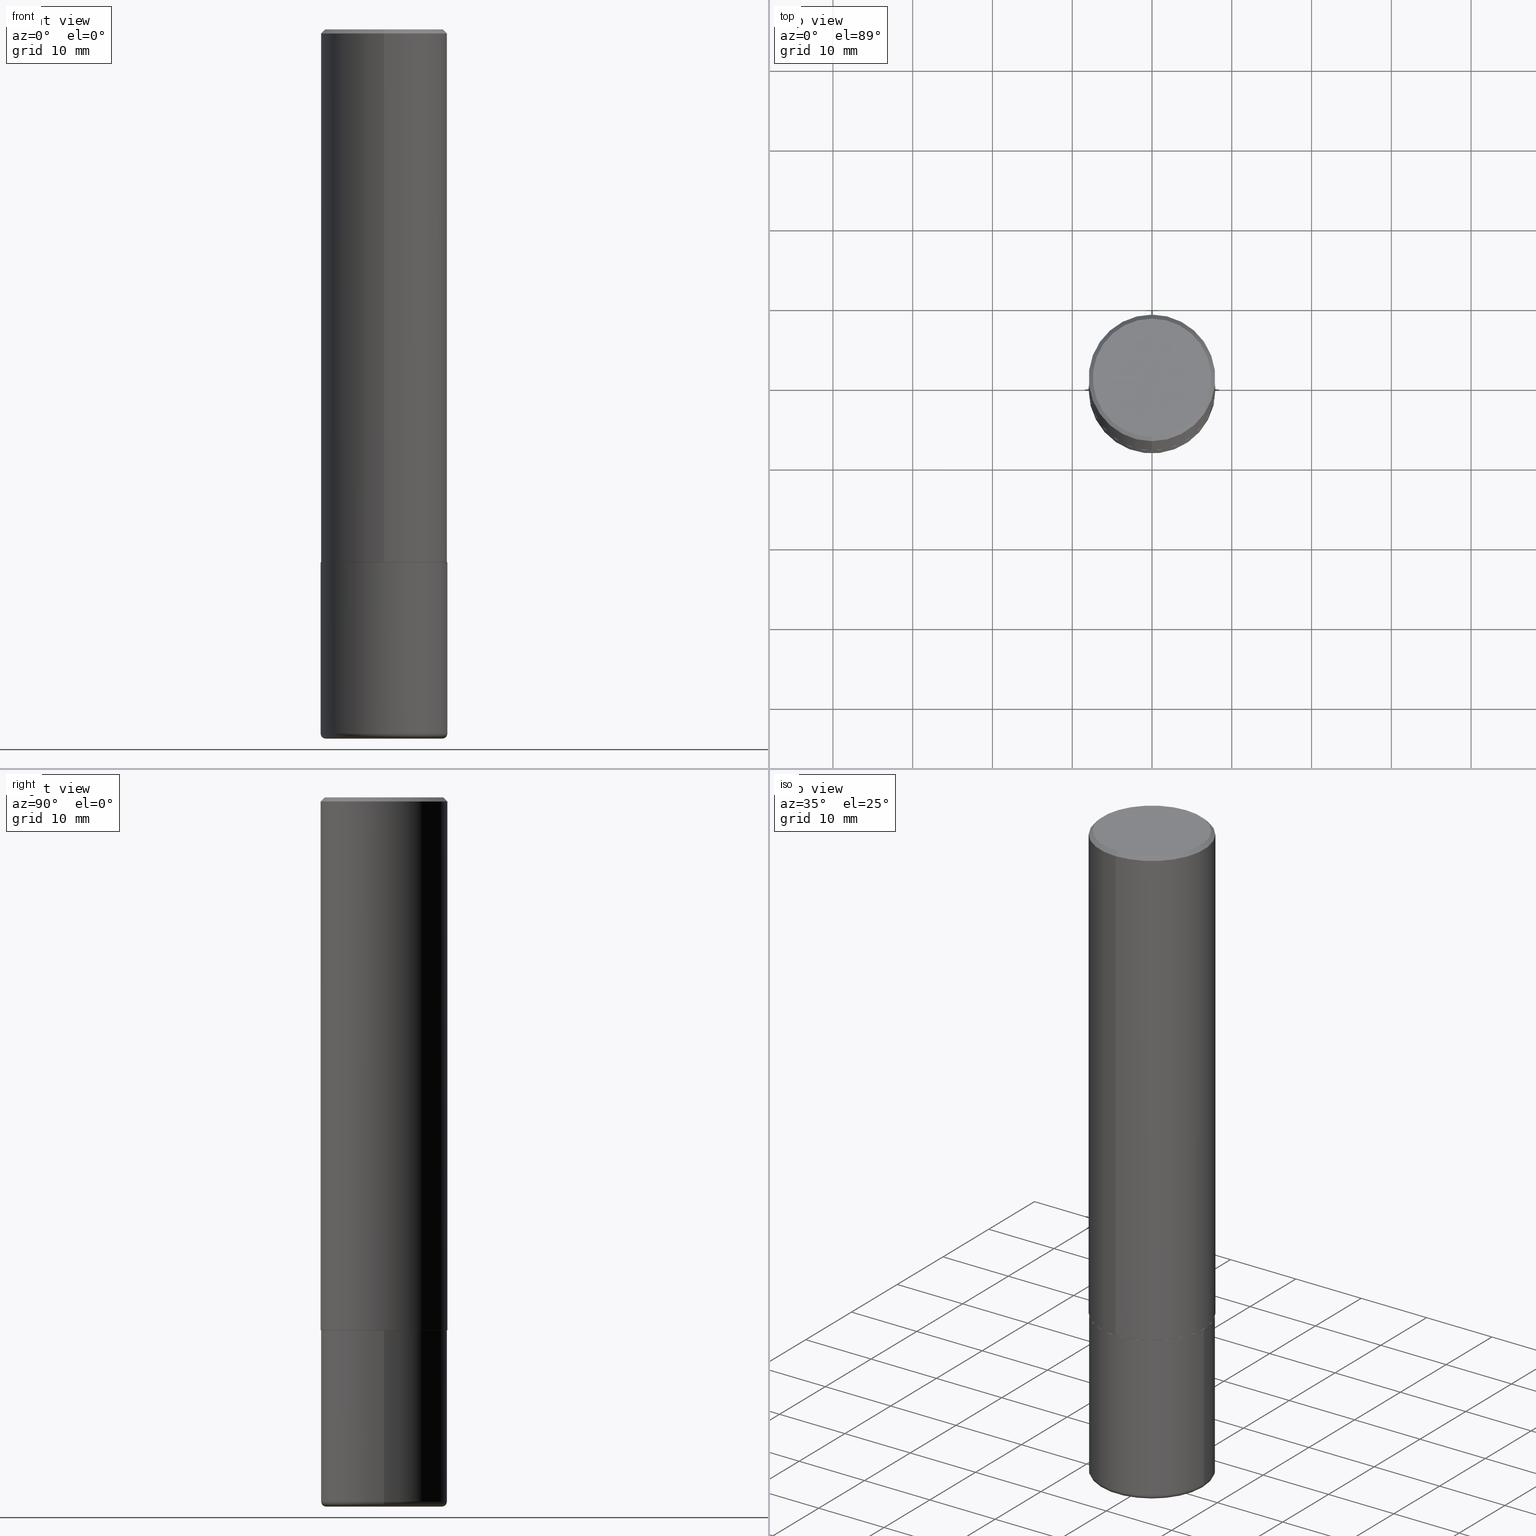
[diagram: canonical four-view strip — front | top / right | iso, engineering-drawing reading convention]
A machine part, canonical four-view strip (front | top / right | iso — engineering-drawing reading convention). The complete STEP part file that produces these views, byte-faithful:
ISO-10303-21;
HEADER;
FILE_DESCRIPTION (( 'STEP AP203' ),
    '1' );
FILE_NAME ('91239.STEP',
    '2024-03-06T17:14:36',
    ( '' ),
    ( '' ),
    'SwSTEP 2.0',
    'SolidWorks 2023',
    '' );
FILE_SCHEMA (( 'CONFIG_CONTROL_DESIGN' ));
ENDSEC;

DATA;
#1 = DIRECTION ( 'NONE',  ( 1.000000000000000000, -6.982962677686265922E-15, 0.000000000000000000 ) ) ;
#2 = EDGE_LOOP ( 'NONE', ( #74, #34, #297, #275 ) ) ;
#3 = CARTESIAN_POINT ( 'NONE',  ( -2.143905624303602824E-15, -0.3125000000000000555, -0.01999999999999897693 ) ) ;
#4 = ORIENTED_EDGE ( 'NONE', *, *, #373, .F. ) ;
#5 = DIRECTION ( 'NONE',  ( -1.000000000000000000, 6.982962677686265922E-15, -4.876176775795935793E-29 ) ) ;
#6 = FACE_OUTER_BOUND ( 'NONE', #67, .T. ) ;
#7 = AXIS2_PLACEMENT_3D ( 'NONE', #319, #381, #26 ) ;
#8 = AXIS2_PLACEMENT_3D ( 'NONE', #265, #163, #38 ) ;
#9 = FACE_OUTER_BOUND ( 'NONE', #12, .T. ) ;
#10 = COORDINATED_UNIVERSAL_TIME_OFFSET ( 5, 0, .BEHIND. ) ;
#11 = DIRECTION ( 'NONE',  ( -2.445724373662476739E-29, 3.491115351669597153E-15, 1.000000000000000000 ) ) ;
#12 = EDGE_LOOP ( 'NONE', ( #141, #329, #174, #242 ) ) ;
#13 = VECTOR ( 'NONE', #416, 39.37007874015748143 ) ;
#14 = DIRECTION ( 'NONE',  ( -2.445724373662476739E-29, 3.491115351669597153E-15, 1.000000000000000000 ) ) ;
#15 = VERTEX_POINT ( 'NONE', #120 ) ;
#16 = PERSON_AND_ORGANIZATION_ROLE ( 'design_owner' ) ;
#17 = VERTEX_POINT ( 'NONE', #403 ) ;
#18 = CALENDAR_DATE ( 2024, 6, 3 ) ;
#19 = ORIENTED_EDGE ( 'NONE', *, *, #350, .F. ) ;
#20 = CLOSED_SHELL ( 'NONE', ( #189, #91, #334, #103, #302, #251, #346, #148 ) ) ;
#21 = DIRECTION ( 'NONE',  ( -2.445724373662476739E-29, 3.491115351669597153E-15, 1.000000000000000000 ) ) ;
#22 = APPLICATION_CONTEXT ( 'configuration controlled 3d designs of mechanical parts and assemblies' ) ;
#23 = EDGE_CURVE ( 'NONE', #399, #17, #380, .T. ) ;
#24 = DIRECTION ( 'NONE',  ( 1.000000000000000000, -6.982962677686264344E-15, 0.000000000000000000 ) ) ;
#25 = APPROVAL_ROLE ( '' ) ;
#26 = DIRECTION ( 'NONE',  ( 1.000000000000000000, -6.982962677686265922E-15, 0.000000000000000000 ) ) ;
#27 = AXIS2_PLACEMENT_3D ( 'NONE', #137, #134, #199 ) ;
#28 = CARTESIAN_POINT ( 'NONE',  ( -0.2875000000000000333, -1.009008728716964076E-14, -3.475000000000000089 ) ) ;
#29 = DIRECTION ( 'NONE',  ( 1.000000000000000000, -6.982962677686266711E-15, 4.876176775795936353E-29 ) ) ;
#30 = FACE_OUTER_BOUND ( 'NONE', #310, .T. ) ;
#31 = AXIS2_PLACEMENT_3D ( 'NONE', #28, #359, #418 ) ;
#32 = AXIS2_PLACEMENT_3D ( 'NONE', #374, #47, #113 ) ;
#33 = PLANE ( 'NONE',  #27 ) ;
#34 = ORIENTED_EDGE ( 'NONE', *, *, #132, .T. ) ;
#35 = APPROVAL ( #382, 'UNSPECIFIED' ) ;
#36 = CARTESIAN_POINT ( 'NONE',  ( 4.891448747324970047E-31, -6.982230703339217380E-17, -0.02000000000000006981 ) ) ;
#37 = DESIGN_CONTEXT ( 'detailed design', #22, 'design' ) ;
#38 = DIRECTION ( 'NONE',  ( 1.000000000000000000, -6.982962677686269077E-15, 0.000000000000000000 ) ) ;
#39 = APPROVAL_PERSON_ORGANIZATION ( #111, #107, #41 ) ;
#40 = EDGE_CURVE ( 'NONE', #49, #399, #109, .T. ) ;
#41 = APPROVAL_ROLE ( '' ) ;
#42 = EDGE_LOOP ( 'NONE', ( #314, #367, #216, #271 ) ) ;
#43 = CARTESIAN_POINT ( 'NONE',  ( -2.143905624303602824E-15, -0.3125000000000000555, -0.01999999999999897693 ) ) ;
#44 = EDGE_LOOP ( 'NONE', ( #237, #247, #85, #349 ) ) ;
#45 = APPROVAL_DATE_TIME ( #343, #276 ) ;
#46 = ORIENTED_EDGE ( 'NONE', *, *, #23, .F. ) ;
#47 = DIRECTION ( 'NONE',  ( 0.000000000000000000, 0.000000000000000000, 1.000000000000000000 ) ) ;
#48 = ORIENTED_EDGE ( 'NONE', *, *, #52, .F. ) ;
#49 = VERTEX_POINT ( 'NONE', #77 ) ;
#50 = CARTESIAN_POINT ( 'NONE',  ( 8.498004101493349225E-29, -1.213289765247992785E-14, -3.474999999999999201 ) ) ;
#51 = VECTOR ( 'NONE', #79, 39.37007874015748143 ) ;
#52 = EDGE_CURVE ( 'NONE', #179, #293, #206, .T. ) ;
#53 = CIRCLE ( 'NONE', #8, 0.3125000000000000000 ) ;
#54 = DIRECTION ( 'NONE',  ( 2.445724373662476458E-29, -3.491115351669597153E-15, -1.000000000000000000 ) ) ;
#55 = PERSON_AND_ORGANIZATION ( #317, #274 ) ;
#56 = DIRECTION ( 'NONE',  ( 6.982962677686265133E-15, 1.000000000000000000, -3.496765431890256920E-15 ) ) ;
#57 = CALENDAR_DATE ( 2024, 6, 3 ) ;
#58 = CARTESIAN_POINT ( 'NONE',  ( 0.2875000000000000333, -1.414049942231473111E-14, -3.475000000000000089 ) ) ;
#59 = EDGE_CURVE ( 'NONE', #15, #181, #286, .T. ) ;
#60 = CIRCLE ( 'NONE', #31, 0.02499999999999959546 ) ;
#61 = APPROVAL_DATE_TIME ( #89, #35 ) ;
#62 = CIRCLE ( 'NONE', #364, 0.3125000000000002776 ) ;
#63 = LINE ( 'NONE', #92, #360 ) ;
#64 = DIRECTION ( 'NONE',  ( -6.982962677686265133E-15, -1.000000000000000000, 3.491115351669596759E-15 ) ) ;
#65 = UNCERTAINTY_MEASURE_WITH_UNIT (LENGTH_MEASURE( 1.000000000000000082E-05 ), #76, 'distance_accuracy_value', 'NONE');
#66 = CARTESIAN_POINT ( 'NONE',  ( 0.000000000000000000, 0.000000000000000000, 0.000000000000000000 ) ) ;
#67 = EDGE_LOOP ( 'NONE', ( #106, #264 ) ) ;
#68 = FACE_OUTER_BOUND ( 'NONE', #160, .T. ) ;
#69 = CIRCLE ( 'NONE', #308, 0.3114999999999999991 ) ;
#70 = AXIS2_PLACEMENT_3D ( 'NONE', #153, #333, #326 ) ;
#71 = CARTESIAN_POINT ( 'NONE',  ( 6.432255102732315053E-29, -9.181633374891039621E-15, -2.629999999999999893 ) ) ;
#72 = DIRECTION ( 'NONE',  ( -2.445724373662476739E-29, 3.491115351669597153E-15, 1.000000000000000000 ) ) ;
#73 = ADVANCED_FACE ( 'NONE', ( #383 ), #127, .T. ) ;
#74 = ORIENTED_EDGE ( 'NONE', *, *, #166, .F. ) ;
#75 = AXIS2_PLACEMENT_3D ( 'NONE', #135, #167, #363 ) ;
#76 =( CONVERSION_BASED_UNIT ( 'INCH', #348 ) LENGTH_UNIT ( ) NAMED_UNIT ( #332 ) );
#77 = CARTESIAN_POINT ( 'NONE',  ( 2.216893335571577263E-15, 0.3114999999999908398, -2.630000000000001226 ) ) ;
#78 = DATE_AND_TIME ( #311, #384 ) ;
#79 = DIRECTION ( 'NONE',  ( 5.024295867789263036E-15, 0.7071067811867189912, 0.7071067811863760433 ) ) ;
#80 = PERSON_AND_ORGANIZATION ( #317, #274 ) ;
#81 = ORIENTED_EDGE ( 'NONE', *, *, #371, .T. ) ;
#82 = AXIS2_PLACEMENT_3D ( 'NONE', #318, #355, #122 ) ;
#83 = APPROVAL_PERSON_ORGANIZATION ( #187, #35, #25 ) ;
#84 = ORIENTED_EDGE ( 'NONE', *, *, #52, .T. ) ;
#85 = ORIENTED_EDGE ( 'NONE', *, *, #296, .T. ) ;
#86 = ADVANCED_FACE ( 'NONE', ( #315 ), #336, .T. ) ;
#87 = SHAPE_DEFINITION_REPRESENTATION ( #356, #239 ) ;
#88 = CARTESIAN_POINT ( 'NONE',  ( 8.498004101493349225E-29, -1.213289765247992785E-14, -3.474999999999999201 ) ) ;
#89 = DATE_AND_TIME ( #288, #198 ) ;
#90 = DIRECTION ( 'NONE',  ( -2.445468806185136597E-29, 3.491481338843145583E-15, 1.000000000000000000 ) ) ;
#91 = ADVANCED_FACE ( 'NONE', ( #221 ), #253, .T. ) ;
#92 = CARTESIAN_POINT ( 'NONE',  ( -2.175192874099207646E-15, -0.3115000000000091585, -2.629999999999999005 ) ) ;
#93 = FACE_OUTER_BOUND ( 'NONE', #211, .T. ) ;
#94 = CIRCLE ( 'NONE', #197, 0.02499999999999959546 ) ;
#95 = CC_DESIGN_APPROVAL ( #35, ( #267 ) ) ;
#96 = DIRECTION ( 'NONE',  ( 1.000000000000000000, -6.982962677686251722E-15, 0.000000000000000000 ) ) ;
#97 = DIRECTION ( 'NONE',  ( -2.445724373662476739E-29, 3.491115351669597153E-15, 1.000000000000000000 ) ) ;
#98 = VERTEX_POINT ( 'NONE', #259 ) ;
#99 = PLANE ( 'NONE',  #124 ) ;
#100 = DIRECTION ( 'NONE',  ( -6.982962677686265922E-15, -1.000000000000000000, 3.507991003100177457E-15 ) ) ;
#101 = LOCAL_TIME ( 12, 14, 36.00000000000000000, #313 ) ;
#102 = PRODUCT ( '91239', '91239', '', ( #246 ) ) ;
#103 = ADVANCED_FACE ( 'NONE', ( #414 ), #323, .T. ) ;
#104 = CARTESIAN_POINT ( 'NONE',  ( -0.3125000000000000000, -8.437300737568386669E-15, -2.629999999999999893 ) ) ;
#105 = DIRECTION ( 'NONE',  ( 4.937700262164543309E-15, 0.7071067811865444641, -0.7071067811865506814 ) ) ;
#106 = ORIENTED_EDGE ( 'NONE', *, *, #269, .F. ) ;
#107 = APPROVAL ( #341, 'UNSPECIFIED' ) ;
#108 =( NAMED_UNIT ( * ) PLANE_ANGLE_UNIT ( ) SI_UNIT ( $, .RADIAN. ) );
#109 = LINE ( 'NONE', #370, #51 ) ;
#110 = VECTOR ( 'NONE', #390, 39.37007874015748143 ) ;
#111 = PERSON_AND_ORGANIZATION ( #317, #274 ) ;
#112 = ORIENTED_EDGE ( 'NONE', *, *, #417, .T. ) ;
#113 = DIRECTION ( 'NONE',  ( 1.000000000000000000, 0.000000000000000000, 0.000000000000000000 ) ) ;
#114 = VERTEX_POINT ( 'NONE', #188 ) ;
#115 = CARTESIAN_POINT ( 'NONE',  ( -2.175192874099207646E-15, -0.3115000000000091585, -2.629999999999999005 ) ) ;
#116 = ORIENTED_EDGE ( 'NONE', *, *, #243, .T. ) ;
#117 = AXIS2_PLACEMENT_3D ( 'NONE', #369, #339, #244 ) ;
#118 = PERSON_AND_ORGANIZATION ( #317, #274 ) ;
#119 = EDGE_CURVE ( 'NONE', #283, #15, #388, .T. ) ;
#120 = CARTESIAN_POINT ( 'NONE',  ( 0.3124999999999997224, -1.431507348925688462E-14, -3.474999999999999201 ) ) ;
#121 = DIRECTION ( 'NONE',  ( -2.445468806185136597E-29, 3.491481338843145583E-15, 1.000000000000000000 ) ) ;
#122 = DIRECTION ( 'NONE',  ( -6.982962677686265133E-15, -1.000000000000000000, 3.491115351669596759E-15 ) ) ;
#123 = CIRCLE ( 'NONE', #324, 0.3124999999999999445 ) ;
#124 = AXIS2_PLACEMENT_3D ( 'NONE', #194, #230, #331 ) ;
#125 = CARTESIAN_POINT ( 'NONE',  ( 4.891448747324970047E-31, -6.982230703339217380E-17, -0.02000000000000006981 ) ) ;
#126 = COORDINATED_UNIVERSAL_TIME_OFFSET ( 5, 0, .BEHIND. ) ;
#127 = CYLINDRICAL_SURFACE ( 'NONE', #220, 0.3125000000000000000 ) ;
#128 = CC_DESIGN_PERSON_AND_ORGANIZATION_ASSIGNMENT ( #223, #182, ( #330 ) ) ;
#129 = CARTESIAN_POINT ( 'NONE',  ( 0.3125000000000000000, -2.182175836776958347E-15, 1.523805242436230075E-29 ) ) ;
#130 = VECTOR ( 'NONE', #105, 39.37007874015748143 ) ;
#131 = CARTESIAN_POINT ( 'NONE',  ( 8.498004101493350346E-29, -1.213289765247992943E-14, -3.475000000000000089 ) ) ;
#132 = EDGE_CURVE ( 'NONE', #114, #98, #210, .T. ) ;
#133 = ORIENTED_EDGE ( 'NONE', *, *, #215, .T. ) ;
#134 = DIRECTION ( 'NONE',  ( -2.445724373662476458E-29, 3.491115351669597153E-15, 1.000000000000000000 ) ) ;
#135 = CARTESIAN_POINT ( 'NONE',  ( 4.891448747324970047E-31, -6.982230703339217380E-17, -0.02000000000000006981 ) ) ;
#136 = AXIS2_PLACEMENT_3D ( 'NONE', #125, #385, #56 ) ;
#137 = CARTESIAN_POINT ( 'NONE',  ( 6.432255102732315053E-29, -9.181633374891039621E-15, -2.629999999999999893 ) ) ;
#138 = AXIS2_PLACEMENT_3D ( 'NONE', #36, #391, #398 ) ;
#139 = FACE_OUTER_BOUND ( 'NONE', #44, .T. ) ;
#140 = CALENDAR_DATE ( 2024, 6, 3 ) ;
#141 = ORIENTED_EDGE ( 'NONE', *, *, #258, .F. ) ;
#142 = DIRECTION ( 'NONE',  ( -6.982962677686265133E-15, -1.000000000000000000, 3.496765431890256920E-15 ) ) ;
#143 = ORIENTED_EDGE ( 'NONE', *, *, #215, .F. ) ;
#144 = VECTOR ( 'NONE', #11, 39.37007874015748143 ) ;
#145 = LOCAL_TIME ( 12, 14, 36.00000000000000000, #357 ) ;
#146 = ORIENTED_EDGE ( 'NONE', *, *, #172, .T. ) ;
#147 = EDGE_LOOP ( 'NONE', ( #46, #312, #84, #278 ) ) ;
#148 = ADVANCED_FACE ( 'NONE', ( #93 ), #386, .F. ) ;
#149 = APPROVAL_STATUS ( 'not_yet_approved' ) ;
#150 = EDGE_LOOP ( 'NONE', ( #300, #196, #146, #347 ) ) ;
#151 = AXIS2_PLACEMENT_3D ( 'NONE', #304, #159, #5 ) ;
#152 = DIRECTION ( 'NONE',  ( -2.445724373662476739E-29, 3.491115351669597153E-15, 1.000000000000000000 ) ) ;
#153 = CARTESIAN_POINT ( 'NONE',  ( 6.429809378358652925E-29, -9.178142259539371563E-15, -2.629000000000000448 ) ) ;
#154 = DIRECTION ( 'NONE',  ( 6.982962677686265922E-15, 1.000000000000000000, -3.491115351669597153E-15 ) ) ;
#155 = VECTOR ( 'NONE', #404, 39.37007874015748143 ) ;
#156 = DATE_AND_TIME ( #57, #145 ) ;
#157 = FACE_OUTER_BOUND ( 'NONE', #249, .T. ) ;
#158 = DIRECTION ( 'NONE',  ( -6.982962677686265922E-15, -1.000000000000000000, 3.507991003100177457E-15 ) ) ;
#159 = DIRECTION ( 'NONE',  ( 2.438088387897960049E-29, -3.491481338843145188E-15, -1.000000000000000000 ) ) ;
#160 = EDGE_LOOP ( 'NONE', ( #408, #19 ) ) ;
#161 = AXIS2_PLACEMENT_3D ( 'NONE', #225, #54, #154 ) ;
#162 = AXIS2_PLACEMENT_3D ( 'NONE', #232, #165, #234 ) ;
#163 = DIRECTION ( 'NONE',  ( -2.445468806185136597E-29, 3.491481338843145583E-15, 1.000000000000000000 ) ) ;
#164 = CC_DESIGN_DATE_AND_TIME_ASSIGNMENT ( #156, #252, ( #267 ) ) ;
#165 = DIRECTION ( 'NONE',  ( -2.445468806185136597E-29, 3.491481338843145583E-15, 1.000000000000000000 ) ) ;
#166 = EDGE_CURVE ( 'NONE', #114, #283, #60, .T. ) ;
#167 = DIRECTION ( 'NONE',  ( 2.445724373662476739E-29, -3.491115351669597153E-15, -1.000000000000000000 ) ) ;
#168 = DIRECTION ( 'NONE',  ( -2.445468806185136597E-29, 3.491481338843145583E-15, 1.000000000000000000 ) ) ;
#169 = CC_DESIGN_PERSON_AND_ORGANIZATION_ASSIGNMENT ( #118, #321, ( #330 ) ) ;
#170 = APPROVAL_DATE_TIME ( #377, #107 ) ;
#171 = CARTESIAN_POINT ( 'NONE',  ( 2.220446049250313475E-15, 0.3125000000000001665, -1.090973547396749554E-15 ) ) ;
#172 = EDGE_CURVE ( 'NONE', #375, #179, #63, .T. ) ;
#173 = APPLICATION_PROTOCOL_DEFINITION ( 'international standard', 'config_control_design', 1994, #292 ) ;
#174 = ORIENTED_EDGE ( 'NONE', *, *, #59, .T. ) ;
#175 = AXIS2_PLACEMENT_3D ( 'NONE', #88, #121, #322 ) ;
#176 = VERTEX_POINT ( 'NONE', #351 ) ;
#177 = CLOSED_SHELL ( 'NONE', ( #73, #86, #285, #320, #299, #327 ) ) ;
#178 = PERSON_AND_ORGANIZATION_ROLE ( 'creator' ) ;
#179 = VERTEX_POINT ( 'NONE', #192 ) ;
#180 = CC_DESIGN_DATE_AND_TIME_ASSIGNMENT ( #78, #207, ( #183 ) ) ;
#181 = VERTEX_POINT ( 'NONE', #250 ) ;
#182 = PERSON_AND_ORGANIZATION_ROLE ( 'design_supplier' ) ;
#183 = PRODUCT_DEFINITION ( 'UNKNOWN', '', #330, #37 ) ;
#184 = DIRECTION ( 'NONE',  ( -2.445468806185136597E-29, 3.491481338843145583E-15, 1.000000000000000000 ) ) ;
#185 = CC_DESIGN_APPROVAL ( #276, ( #330 ) ) ;
#186 = CARTESIAN_POINT ( 'NONE',  ( -2.182175836776959136E-15, -0.3125000000000001665, 1.090973547396749554E-15 ) ) ;
#187 = PERSON_AND_ORGANIZATION ( #317, #274 ) ;
#188 = CARTESIAN_POINT ( 'NONE',  ( -0.2875000000000000333, -1.004491296193516694E-14, -3.499999999999999112 ) ) ;
#189 = ADVANCED_FACE ( 'NONE', ( #157 ), #282, .T. ) ;
#190 = CARTESIAN_POINT ( 'NONE',  ( 8.498004101493350346E-29, -1.213289765247992943E-14, -3.475000000000000089 ) ) ;
#191 = AXIS2_PLACEMENT_3D ( 'NONE', #412, #219, #352 ) ;
#192 = CARTESIAN_POINT ( 'NONE',  ( -2.182175836776895633E-15, -0.3125000000000094369, -2.628999999999999115 ) ) ;
#193 = EDGE_CURVE ( 'NONE', #98, #15, #94, .T. ) ;
#194 = CARTESIAN_POINT ( 'NONE',  ( 1.320382771090319883E-28, -5.568728701377147127E-15, -3.499999999999999112 ) ) ;
#195 = DIRECTION ( 'NONE',  ( -2.445724373662476739E-29, 3.491115351669597153E-15, 1.000000000000000000 ) ) ;
#196 = ORIENTED_EDGE ( 'NONE', *, *, #350, .T. ) ;
#197 = AXIS2_PLACEMENT_3D ( 'NONE', #58, #290, #96 ) ;
#198 = LOCAL_TIME ( 12, 14, 36.00000000000000000, #126 ) ;
#199 = DIRECTION ( 'NONE',  ( -6.982962677686265922E-15, -1.000000000000000000, 3.491115351669597153E-15 ) ) ;
#200 = CARTESIAN_POINT ( 'NONE',  ( -0.3124999999999997224, -9.912451603229616350E-15, -3.474999999999999201 ) ) ;
#201 = DIRECTION ( 'NONE',  ( -6.982962677686265922E-15, -1.000000000000000000, 3.496765431890253764E-15 ) ) ;
#202 = CIRCLE ( 'NONE', #413, 0.3114999999999999991 ) ;
#203 = EDGE_LOOP ( 'NONE', ( #379, #240, #392, #48 ) ) ;
#204 = EDGE_CURVE ( 'NONE', #375, #49, #69, .T. ) ;
#205 = CARTESIAN_POINT ( 'NONE',  ( 2.182175836776958741E-15, 0.3124999999999999445, -0.02000000000000116268 ) ) ;
#206 = LINE ( 'NONE', #186, #394 ) ;
#207 = DATE_TIME_ROLE ( 'creation_date' ) ;
#208 = EDGE_LOOP ( 'NONE', ( #273, #344, #143, #340 ) ) ;
#209 = CARTESIAN_POINT ( 'NONE',  ( 4.891448747324970047E-31, -6.982230703339217380E-17, -0.02000000000000006981 ) ) ;
#210 = CIRCLE ( 'NONE', #7, 0.2875000000000000333 ) ;
#211 = EDGE_LOOP ( 'NONE', ( #81, #231 ) ) ;
#212 = CONICAL_SURFACE ( 'NONE', #284, 0.3114999999999999991, 0.7853981633976873100 ) ;
#213 =( LENGTH_UNIT ( ) NAMED_UNIT ( * ) SI_UNIT ( $, .METRE. ) );
#214 = VERTEX_POINT ( 'NONE', #387 ) ;
#215 = EDGE_CURVE ( 'NONE', #15, #283, #123, .T. ) ;
#216 = ORIENTED_EDGE ( 'NONE', *, *, #400, .T. ) ;
#217 = MANIFOLD_SOLID_BREP ( 'Body-Move/Copy2[1]', #177 ) ;
#218 = PERSON_AND_ORGANIZATION_ROLE ( 'classification_officer' ) ;
#219 = DIRECTION ( 'NONE',  ( -2.445724373662476739E-29, 3.491115351669597153E-15, 1.000000000000000000 ) ) ;
#220 = AXIS2_PLACEMENT_3D ( 'NONE', #224, #256, #29 ) ;
#221 = FACE_OUTER_BOUND ( 'NONE', #203, .T. ) ;
#222 = EDGE_CURVE ( 'NONE', #214, #176, #337, .T. ) ;
#223 = PERSON_AND_ORGANIZATION ( #317, #274 ) ;
#224 = CARTESIAN_POINT ( 'NONE',  ( 0.000000000000000000, 0.000000000000000000, 0.000000000000000000 ) ) ;
#225 = CARTESIAN_POINT ( 'NONE',  ( 2.042516583223231356E-15, 0.2924999999999997602, -9.208947224701282030E-16 ) ) ;
#226 = EDGE_CURVE ( 'NONE', #399, #179, #255, .T. ) ;
#227 = AXIS2_PLACEMENT_3D ( 'NONE', #190, #90, #287 ) ;
#228 =( GEOMETRIC_REPRESENTATION_CONTEXT ( 3 ) GLOBAL_UNCERTAINTY_ASSIGNED_CONTEXT ( ( #65 ) ) GLOBAL_UNIT_ASSIGNED_CONTEXT ( ( #76, #108, #272 ) ) REPRESENTATION_CONTEXT ( 'NONE', 'WORKASPACE' ) );
#229 = DIRECTION ( 'NONE',  ( -2.445468806185136597E-29, 3.491481338843145583E-15, 1.000000000000000000 ) ) ;
#230 = DIRECTION ( 'NONE',  ( 2.438088387897960049E-29, -3.491481338843145188E-15, -1.000000000000000000 ) ) ;
#231 = ORIENTED_EDGE ( 'NONE', *, *, #222, .T. ) ;
#232 = CARTESIAN_POINT ( 'NONE',  ( 0.000000000000000000, 0.000000000000000000, 0.000000000000000000 ) ) ;
#233 = CONICAL_SURFACE ( 'NONE', #75, 0.3125000000000000000, 0.7853981633974473908 ) ;
#234 = DIRECTION ( 'NONE',  ( 1.000000000000000000, -6.982962677686266711E-15, 4.876176775795936353E-29 ) ) ;
#235 = CARTESIAN_POINT ( 'NONE',  ( 6.429809378358652925E-29, -9.178142259539371563E-15, -2.629000000000000448 ) ) ;
#236 = PERSON_AND_ORGANIZATION ( #317, #274 ) ;
#237 = ORIENTED_EDGE ( 'NONE', *, *, #222, .F. ) ;
#238 = AXIS2_PLACEMENT_3D ( 'NONE', #295, #168, #1 ) ;
#239 = ADVANCED_BREP_SHAPE_REPRESENTATION ( '91239', ( #217, #376, #32 ), #228 ) ;
#240 = ORIENTED_EDGE ( 'NONE', *, *, #23, .T. ) ;
#241 = LINE ( 'NONE', #43, #155 ) ;
#242 = ORIENTED_EDGE ( 'NONE', *, *, #243, .F. ) ;
#243 = EDGE_CURVE ( 'NONE', #372, #181, #53, .T. ) ;
#244 = DIRECTION ( 'NONE',  ( 1.000000000000000000, -6.982962677686269077E-15, 0.000000000000000000 ) ) ;
#245 = EDGE_LOOP ( 'NONE', ( #133, #342, #280, #307 ) ) ;
#246 = MECHANICAL_CONTEXT ( 'NONE', #292, 'mechanical' ) ;
#247 = ORIENTED_EDGE ( 'NONE', *, *, #406, .T. ) ;
#248 = TOROIDAL_SURFACE ( 'NONE', #353, 0.2875000000000000333, 0.02499999999999963016 ) ;
#249 = EDGE_LOOP ( 'NONE', ( #405, #306, #4, #410 ) ) ;
#250 = CARTESIAN_POINT ( 'NONE',  ( 0.3125000000000000000, -1.136477175793443157E-14, -2.629999999999999893 ) ) ;
#251 = ADVANCED_FACE ( 'NONE', ( #335 ), #212, .T. ) ;
#252 = DATE_TIME_ROLE ( 'classification_date' ) ;
#253 = CYLINDRICAL_SURFACE ( 'NONE', #82, 0.3125000000000001665 ) ;
#254 = AXIS2_PLACEMENT_3D ( 'NONE', #289, #21, #158 ) ;
#255 = CIRCLE ( 'NONE', #70, 0.3125000000000002776 ) ;
#256 = DIRECTION ( 'NONE',  ( -2.445468806185136597E-29, 3.491481338843145583E-15, 1.000000000000000000 ) ) ;
#257 = SECURITY_CLASSIFICATION_LEVEL ( 'unclassified' ) ;
#258 = EDGE_CURVE ( 'NONE', #283, #372, #393, .T. ) ;
#259 = CARTESIAN_POINT ( 'NONE',  ( 0.2875000000000000333, -1.422778645578580787E-14, -3.499999999999999112 ) ) ;
#260 = CARTESIAN_POINT ( 'NONE',  ( 6.432255102732315053E-29, -9.181633374891039621E-15, -2.629999999999999893 ) ) ;
#261 = PRODUCT_RELATED_PRODUCT_CATEGORY ( 'detail', '', ( #102 ) ) ;
#262 = CIRCLE ( 'NONE', #138, 0.3125000000000000000 ) ;
#263 = DIRECTION ( 'NONE',  ( -2.445724373662476739E-29, 3.491115351669597153E-15, 1.000000000000000000 ) ) ;
#264 = ORIENTED_EDGE ( 'NONE', *, *, #132, .F. ) ;
#265 = CARTESIAN_POINT ( 'NONE',  ( 6.431582960266909339E-29, -9.182595921157471648E-15, -2.629999999999999893 ) ) ;
#266 = CYLINDRICAL_SURFACE ( 'NONE', #162, 0.3125000000000000000 ) ;
#267 = SECURITY_CLASSIFICATION ( '', '', #257 ) ;
#268 = CARTESIAN_POINT ( 'NONE',  ( 6.432255102732315053E-29, -9.181633374891039621E-15, -2.629999999999999893 ) ) ;
#269 = EDGE_CURVE ( 'NONE', #98, #114, #409, .T. ) ;
#270 = DIRECTION ( 'NONE',  ( -6.982962677686265922E-15, -1.000000000000000000, 3.507991003100177457E-15 ) ) ;
#271 = ORIENTED_EDGE ( 'NONE', *, *, #378, .T. ) ;
#272 =( NAMED_UNIT ( * ) SI_UNIT ( $, .STERADIAN. ) SOLID_ANGLE_UNIT ( ) );
#273 = ORIENTED_EDGE ( 'NONE', *, *, #269, .T. ) ;
#274 = ORGANIZATION ( 'UNSPECIFIED', 'UNSPECIFIED', '' ) ;
#275 = ORIENTED_EDGE ( 'NONE', *, *, #119, .F. ) ;
#276 = APPROVAL ( #149, 'UNSPECIFIED' ) ;
#277 = LINE ( 'NONE', #205, #130 ) ;
#278 = ORIENTED_EDGE ( 'NONE', *, *, #378, .F. ) ;
#279 = APPLICATION_PROTOCOL_DEFINITION ( 'international standard', 'config_control_design', 1994, #22 ) ;
#280 = ORIENTED_EDGE ( 'NONE', *, *, #417, .F. ) ;
#281 = APPROVAL_ROLE ( '' ) ;
#282 = CONICAL_SURFACE ( 'NONE', #254, 0.3114999999999999991, 0.7853981633976873100 ) ;
#283 = VERTEX_POINT ( 'NONE', #200 ) ;
#284 = AXIS2_PLACEMENT_3D ( 'NONE', #71, #97, #270 ) ;
#285 = ADVANCED_FACE ( 'NONE', ( #30 ), #396, .F. ) ;
#286 = LINE ( 'NONE', #129, #13 ) ;
#287 = DIRECTION ( 'NONE',  ( 1.000000000000000000, -6.982962677686265922E-15, 4.883557194083112340E-29 ) ) ;
#288 = CALENDAR_DATE ( 2024, 6, 3 ) ;
#289 = CARTESIAN_POINT ( 'NONE',  ( 6.432255102732315053E-29, -9.181633374891039621E-15, -2.629999999999999893 ) ) ;
#290 = DIRECTION ( 'NONE',  ( -6.982962677686266711E-15, -1.000000000000000000, 3.491481338843145583E-15 ) ) ;
#291 = FACE_OUTER_BOUND ( 'NONE', #2, .T. ) ;
#292 = APPLICATION_CONTEXT ( 'configuration controlled 3d designs of mechanical parts and assemblies' ) ;
#293 = VERTEX_POINT ( 'NONE', #3 ) ;
#294 = CIRCLE ( 'NONE', #401, 0.3125000000000000000 ) ;
#295 = CARTESIAN_POINT ( 'NONE',  ( 8.559140821647976968E-29, -1.222018468595100619E-14, -3.499999999999999112 ) ) ;
#296 = EDGE_CURVE ( 'NONE', #293, #17, #262, .T. ) ;
#297 = ORIENTED_EDGE ( 'NONE', *, *, #193, .T. ) ;
#298 = DIRECTION ( 'NONE',  ( 1.000000000000000000, -6.982962677686265922E-15, 4.883557194083112340E-29 ) ) ;
#299 = ADVANCED_FACE ( 'NONE', ( #291 ), #248, .T. ) ;
#300 = ORIENTED_EDGE ( 'NONE', *, *, #40, .F. ) ;
#301 = DIRECTION ( 'NONE',  ( -6.982962677686266711E-15, -1.000000000000000000, 3.491115351669597547E-15 ) ) ;
#302 = ADVANCED_FACE ( 'NONE', ( #361 ), #366, .T. ) ;
#303 = CIRCLE ( 'NONE', #117, 0.3125000000000000000 ) ;
#304 = CARTESIAN_POINT ( 'NONE',  ( 6.431582960266909339E-29, -9.182595921157471648E-15, -2.629999999999999893 ) ) ;
#305 = PERSON_AND_ORGANIZATION ( #317, #274 ) ;
#306 = ORIENTED_EDGE ( 'NONE', *, *, #40, .T. ) ;
#307 = ORIENTED_EDGE ( 'NONE', *, *, #59, .F. ) ;
#308 = AXIS2_PLACEMENT_3D ( 'NONE', #260, #152, #411 ) ;
#309 = AXIS2_PLACEMENT_3D ( 'NONE', #66, #263, #64 ) ;
#310 = EDGE_LOOP ( 'NONE', ( #112, #116 ) ) ;
#311 = CALENDAR_DATE ( 2024, 6, 3 ) ;
#312 = ORIENTED_EDGE ( 'NONE', *, *, #226, .T. ) ;
#313 = COORDINATED_UNIVERSAL_TIME_OFFSET ( 5, 0, .BEHIND. ) ;
#314 = ORIENTED_EDGE ( 'NONE', *, *, #406, .F. ) ;
#315 = FACE_OUTER_BOUND ( 'NONE', #208, .T. ) ;
#316 = AXIS2_PLACEMENT_3D ( 'NONE', #365, #195, #301 ) ;
#317 = PERSON ( 'UNSPECIFIED', 'UNSPECIFIED', 'UNSPECIFIED', ('UNSPECIFIED'), ('UNSPECIFIED'), ('UNSPECIFIED') ) ;
#318 = CARTESIAN_POINT ( 'NONE',  ( 0.000000000000000000, 0.000000000000000000, 0.000000000000000000 ) ) ;
#319 = CARTESIAN_POINT ( 'NONE',  ( 8.559140821647976968E-29, -1.222018468595100619E-14, -3.499999999999999112 ) ) ;
#320 = ADVANCED_FACE ( 'NONE', ( #9 ), #266, .T. ) ;
#321 = PERSON_AND_ORGANIZATION_ROLE ( 'creator' ) ;
#322 = DIRECTION ( 'NONE',  ( 1.000000000000000000, -6.982962677686264344E-15, 0.000000000000000000 ) ) ;
#323 = CONICAL_SURFACE ( 'NONE', #136, 0.3125000000000000000, 0.7853981633974473908 ) ;
#324 = AXIS2_PLACEMENT_3D ( 'NONE', #50, #184, #24 ) ;
#325 = DIRECTION ( 'NONE',  ( -2.445724373662476739E-29, 3.491115351669597153E-15, 1.000000000000000000 ) ) ;
#326 = DIRECTION ( 'NONE',  ( -6.982962677686265922E-15, -1.000000000000000000, 3.496765431890253764E-15 ) ) ;
#327 = ADVANCED_FACE ( 'NONE', ( #6 ), #99, .T. ) ;
#328 = CARTESIAN_POINT ( 'NONE',  ( -0.3125000000000000000, 2.220446049250313081E-15, -1.537167215704658232E-29 ) ) ;
#329 = ORIENTED_EDGE ( 'NONE', *, *, #119, .T. ) ;
#330 = PRODUCT_DEFINITION_FORMATION_WITH_SPECIFIED_SOURCE ( 'ANY', '', #102, .NOT_KNOWN. ) ;
#331 = DIRECTION ( 'NONE',  ( -1.000000000000000000, 6.982962677686265922E-15, -4.876176775795935793E-29 ) ) ;
#332 = DIMENSIONAL_EXPONENTS ( 1.000000000000000000, 0.000000000000000000, 0.000000000000000000, 0.000000000000000000, 0.000000000000000000, 0.000000000000000000, 0.000000000000000000 ) ;
#333 = DIRECTION ( 'NONE',  ( -2.445724373662476739E-29, 3.491115351669597153E-15, 1.000000000000000000 ) ) ;
#334 = ADVANCED_FACE ( 'NONE', ( #139 ), #233, .T. ) ;
#335 = FACE_OUTER_BOUND ( 'NONE', #150, .T. ) ;
#336 = TOROIDAL_SURFACE ( 'NONE', #227, 0.2875000000000000333, 0.02499999999999963016 ) ;
#337 = CIRCLE ( 'NONE', #191, 0.2924999999999997602 ) ;
#338 = CC_DESIGN_PERSON_AND_ORGANIZATION_ASSIGNMENT ( #236, #16, ( #102 ) ) ;
#339 = DIRECTION ( 'NONE',  ( -2.445468806185136597E-29, 3.491481338843145583E-15, 1.000000000000000000 ) ) ;
#340 = ORIENTED_EDGE ( 'NONE', *, *, #193, .F. ) ;
#341 = APPROVAL_STATUS ( 'not_yet_approved' ) ;
#342 = ORIENTED_EDGE ( 'NONE', *, *, #258, .T. ) ;
#343 = DATE_AND_TIME ( #140, #368 ) ;
#344 = ORIENTED_EDGE ( 'NONE', *, *, #166, .T. ) ;
#345 = CC_DESIGN_APPROVAL ( #107, ( #183 ) ) ;
#346 = ADVANCED_FACE ( 'NONE', ( #68 ), #33, .F. ) ;
#347 = ORIENTED_EDGE ( 'NONE', *, *, #226, .F. ) ;
#348 = LENGTH_MEASURE_WITH_UNIT ( LENGTH_MEASURE( 0.02539999999999999897 ), #213 );
#349 = ORIENTED_EDGE ( 'NONE', *, *, #400, .F. ) ;
#350 = EDGE_CURVE ( 'NONE', #49, #375, #202, .T. ) ;
#351 = CARTESIAN_POINT ( 'NONE',  ( 2.112346210000094654E-15, 0.2924999999999997602, -8.206382045769000612E-16 ) ) ;
#352 = DIRECTION ( 'NONE',  ( -6.982962677686266711E-15, -1.000000000000000000, 3.491115351669597547E-15 ) ) ;
#353 = AXIS2_PLACEMENT_3D ( 'NONE', #131, #229, #298 ) ;
#354 = CC_DESIGN_PERSON_AND_ORGANIZATION_ASSIGNMENT ( #80, #178, ( #183 ) ) ;
#355 = DIRECTION ( 'NONE',  ( -2.445724373662476739E-29, 3.491115351669597153E-15, 1.000000000000000000 ) ) ;
#356 = PRODUCT_DEFINITION_SHAPE ( 'NONE', 'NONE',  #183 ) ;
#357 = COORDINATED_UNIVERSAL_TIME_OFFSET ( 5, 0, .BEHIND. ) ;
#358 = DIRECTION ( 'NONE',  ( -4.937700262165728178E-15, -0.7071067811867141062, 0.7071067811863809283 ) ) ;
#359 = DIRECTION ( 'NONE',  ( 7.105427357601001859E-15, 1.000000000000000000, -3.491481338843145583E-15 ) ) ;
#360 = VECTOR ( 'NONE', #358, 39.37007874015748143 ) ;
#361 = FACE_OUTER_BOUND ( 'NONE', #147, .T. ) ;
#362 = DIRECTION ( 'NONE',  ( -2.445724373662476739E-29, 3.491115351669597153E-15, 1.000000000000000000 ) ) ;
#363 = DIRECTION ( 'NONE',  ( 6.982962677686265133E-15, 1.000000000000000000, -3.496765431890256920E-15 ) ) ;
#364 = AXIS2_PLACEMENT_3D ( 'NONE', #235, #72, #201 ) ;
#365 = CARTESIAN_POINT ( 'NONE',  ( -4.903996188599928172E-45, 7.000141374439731641E-31, 2.005130357864563823E-16 ) ) ;
#366 = CYLINDRICAL_SURFACE ( 'NONE', #309, 0.3125000000000001665 ) ;
#367 = ORIENTED_EDGE ( 'NONE', *, *, #371, .F. ) ;
#368 = LOCAL_TIME ( 12, 14, 36.00000000000000000, #10 ) ;
#369 = CARTESIAN_POINT ( 'NONE',  ( 6.431582960266909339E-29, -9.182595921157471648E-15, -2.629999999999999893 ) ) ;
#370 = CARTESIAN_POINT ( 'NONE',  ( 2.213340621892776365E-15, 0.3114999999999908398, -2.630000000000001226 ) ) ;
#371 = EDGE_CURVE ( 'NONE', #176, #214, #415, .T. ) ;
#372 = VERTEX_POINT ( 'NONE', #104 ) ;
#373 = EDGE_CURVE ( 'NONE', #179, #399, #62, .T. ) ;
#374 = CARTESIAN_POINT ( 'NONE',  ( 0.000000000000000000, 0.000000000000000000, 0.000000000000000000 ) ) ;
#375 = VERTEX_POINT ( 'NONE', #115 ) ;
#376 = MANIFOLD_SOLID_BREP ( 'Body-Move/Copy2[2]', #20 ) ;
#377 = DATE_AND_TIME ( #18, #101 ) ;
#378 = EDGE_CURVE ( 'NONE', #17, #293, #294, .T. ) ;
#379 = ORIENTED_EDGE ( 'NONE', *, *, #373, .T. ) ;
#380 = LINE ( 'NONE', #171, #144 ) ;
#381 = DIRECTION ( 'NONE',  ( -2.445468806185136597E-29, 3.491481338843145583E-15, 1.000000000000000000 ) ) ;
#382 = APPROVAL_STATUS ( 'not_yet_approved' ) ;
#383 = FACE_OUTER_BOUND ( 'NONE', #245, .T. ) ;
#384 = LOCAL_TIME ( 12, 14, 36.00000000000000000, #402 ) ;
#385 = DIRECTION ( 'NONE',  ( 2.445724373662476739E-29, -3.491115351669597153E-15, -1.000000000000000000 ) ) ;
#386 = PLANE ( 'NONE',  #161 ) ;
#387 = CARTESIAN_POINT ( 'NONE',  ( -2.075300644325887099E-15, -0.2924999999999997602, 1.221664276149812727E-15 ) ) ;
#388 = CIRCLE ( 'NONE', #175, 0.3124999999999999445 ) ;
#389 = CC_DESIGN_SECURITY_CLASSIFICATION ( #267, ( #330 ) ) ;
#390 = DIRECTION ( 'NONE',  ( -2.445468806185136877E-29, 3.491481338843145188E-15, 1.000000000000000000 ) ) ;
#391 = DIRECTION ( 'NONE',  ( -2.445724373662476739E-29, 3.491115351669597153E-15, 1.000000000000000000 ) ) ;
#392 = ORIENTED_EDGE ( 'NONE', *, *, #296, .F. ) ;
#393 = LINE ( 'NONE', #328, #110 ) ;
#394 = VECTOR ( 'NONE', #325, 39.37007874015748143 ) ;
#395 = APPROVAL_PERSON_ORGANIZATION ( #305, #276, #281 ) ;
#396 = PLANE ( 'NONE',  #151 ) ;
#397 = CC_DESIGN_PERSON_AND_ORGANIZATION_ASSIGNMENT ( #55, #218, ( #267 ) ) ;
#398 = DIRECTION ( 'NONE',  ( -6.982962677686265133E-15, -1.000000000000000000, 3.496765431890256920E-15 ) ) ;
#399 = VERTEX_POINT ( 'NONE', #407 ) ;
#400 = EDGE_CURVE ( 'NONE', #176, #17, #277, .T. ) ;
#401 = AXIS2_PLACEMENT_3D ( 'NONE', #209, #14, #142 ) ;
#402 = COORDINATED_UNIVERSAL_TIME_OFFSET ( 5, 0, .BEHIND. ) ;
#403 = CARTESIAN_POINT ( 'NONE',  ( 2.182175836776958741E-15, 0.3124999999999999445, -0.02000000000000116268 ) ) ;
#404 = DIRECTION ( 'NONE',  ( -4.851104656540959542E-15, -0.7071067811865493491, -0.7071067811865457964 ) ) ;
#405 = ORIENTED_EDGE ( 'NONE', *, *, #204, .T. ) ;
#406 = EDGE_CURVE ( 'NONE', #214, #293, #241, .T. ) ;
#407 = CARTESIAN_POINT ( 'NONE',  ( 2.220446049250346607E-15, 0.3124999999999911182, -2.629000000000001336 ) ) ;
#408 = ORIENTED_EDGE ( 'NONE', *, *, #204, .F. ) ;
#409 = CIRCLE ( 'NONE', #238, 0.2875000000000000333 ) ;
#410 = ORIENTED_EDGE ( 'NONE', *, *, #172, .F. ) ;
#411 = DIRECTION ( 'NONE',  ( -6.982962677686265922E-15, -1.000000000000000000, 3.507991003100177457E-15 ) ) ;
#412 = CARTESIAN_POINT ( 'NONE',  ( -4.903996188599928172E-45, 7.000141374439731641E-31, 2.005130357864563823E-16 ) ) ;
#413 = AXIS2_PLACEMENT_3D ( 'NONE', #268, #362, #100 ) ;
#414 = FACE_OUTER_BOUND ( 'NONE', #42, .T. ) ;
#415 = CIRCLE ( 'NONE', #316, 0.2924999999999997602 ) ;
#416 = DIRECTION ( 'NONE',  ( -2.445468806185136877E-29, 3.491481338843145188E-15, 1.000000000000000000 ) ) ;
#417 = EDGE_CURVE ( 'NONE', #181, #372, #303, .T. ) ;
#418 = DIRECTION ( 'NONE',  ( -1.000000000000000000, 7.105427357601001859E-15, 0.000000000000000000 ) ) ;
ENDSEC;
END-ISO-10303-21;
